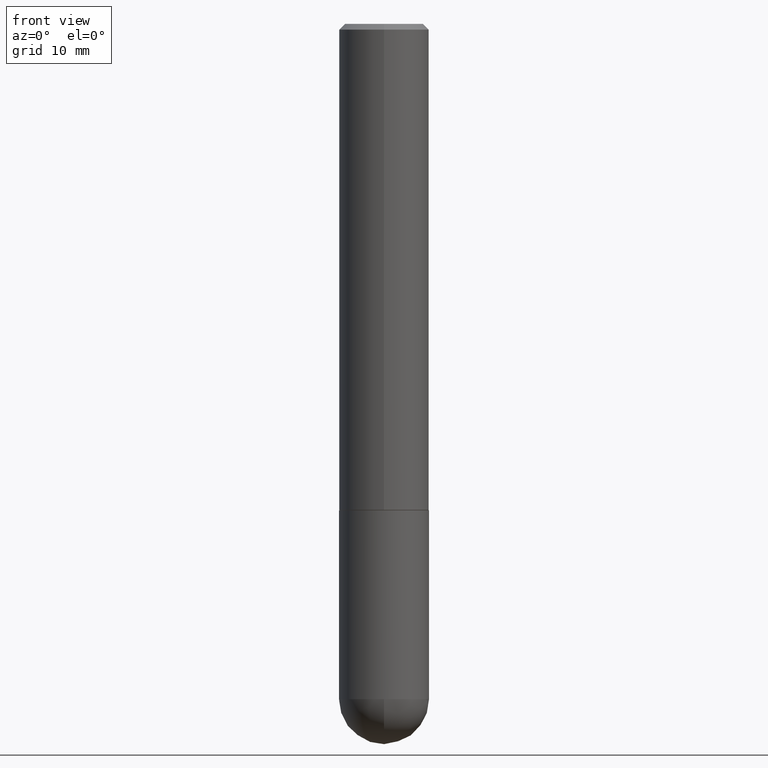
[diagram: clean part render]
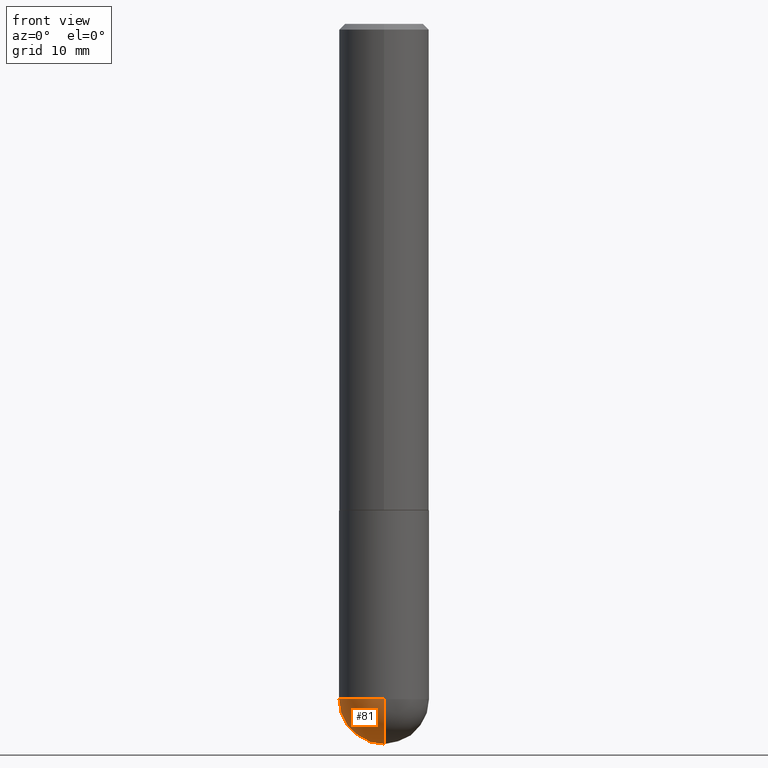
[diagram: same view with one face highlighted and labeled with its STEP entity id]
A machine part, front view. The second image highlights one B-rep face of the part: STEP entity #81.
In plain terms, the highlighted spherical surface has radius 3.9688 mm.
Its self-contained STEP definition (entity closure, byte-faithful):
#1 = DIRECTION ( 'NONE',  ( 1.000000000000000000, -6.982962677686262766E-15, 0.000000000000000000 ) ) ;
#7 = CARTESIAN_POINT ( 'NONE',  ( 5.400447736582527652E-29, -8.657341756053672891E-15, -2.343750000000000000 ) ) ;
#35 = CARTESIAN_POINT ( 'NONE',  ( 5.731567514496413899E-29, -8.183159387913622595E-15, -2.343750000000000000 ) ) ;
#48 = CIRCLE ( 'NONE', #328, 0.1562500000000002498 ) ;
#51 = EDGE_LOOP ( 'NONE', ( #171, #91, #118, #295 ) ) ;
#62 = DIRECTION ( 'NONE',  ( 1.000000000000000000, -6.982962677686262766E-15, 0.000000000000000000 ) ) ;
#81 = ADVANCED_FACE ( 'NONE', ( #142 ), #199, .T. ) ;
#88 = AXIS2_PLACEMENT_3D ( 'NONE', #7, #382, #405 ) ;
#91 = ORIENTED_EDGE ( 'NONE', *, *, #188, .T. ) ;
#94 = CARTESIAN_POINT ( 'NONE',  ( 5.731567514496413899E-29, -8.183159387913622595E-15, -2.343750000000000000 ) ) ;
#107 = VERTEX_POINT ( 'NONE', #243 ) ;
#118 = ORIENTED_EDGE ( 'NONE', *, *, #369, .F. ) ;
#130 = DIRECTION ( 'NONE',  ( 1.000000000000000000, -6.982962677686265922E-15, 4.883557194083112340E-29 ) ) ;
#142 = FACE_OUTER_BOUND ( 'NONE', #51, .T. ) ;
#146 = DIRECTION ( 'NONE',  ( 6.982962677686265922E-15, 1.000000000000000000, -3.496765431890251398E-15 ) ) ;
#147 = AXIS2_PLACEMENT_3D ( 'NONE', #94, #221, #62 ) ;
#156 = DIRECTION ( 'NONE',  ( -2.445468806185136597E-29, 3.491481338843145583E-15, 1.000000000000000000 ) ) ;
#158 = CARTESIAN_POINT ( 'NONE',  ( -1.110223024625101517E-15, -0.1562500000000085487, -2.343749999999999556 ) ) ;
#171 = ORIENTED_EDGE ( 'NONE', *, *, #388, .F. ) ;
#185 = AXIS2_PLACEMENT_3D ( 'NONE', #35, #156, #1 ) ;
#187 = CARTESIAN_POINT ( 'NONE',  ( 5.400447736582527652E-29, -8.657341756053672891E-15, -2.343750000000000000 ) ) ;
#188 = EDGE_CURVE ( 'NONE', #244, #274, #339, .T. ) ;
#199 = SPHERICAL_SURFACE ( 'NONE', #293, 0.1562500000000002498 ) ;
#221 = DIRECTION ( 'NONE',  ( -2.445468806185136597E-29, 3.491481338843145583E-15, 1.000000000000000000 ) ) ;
#224 = DIRECTION ( 'NONE',  ( 6.982962677686265922E-15, 1.000000000000000000, 0.000000000000000000 ) ) ;
#231 = CIRCLE ( 'NONE', #147, 0.1562500000000000000 ) ;
#235 = EDGE_CURVE ( 'NONE', #316, #107, #365, .T. ) ;
#243 = CARTESIAN_POINT ( 'NONE',  ( -0.1562500000000000000, -5.928166919315270321E-15, -2.343750000000000000 ) ) ;
#244 = VERTEX_POINT ( 'NONE', #358 ) ;
#274 = VERTEX_POINT ( 'NONE', #158 ) ;
#287 = CARTESIAN_POINT ( 'NONE',  ( 1.091087918388535577E-15, 0.1562499999999916733, -2.343750000000000444 ) ) ;
#293 = AXIS2_PLACEMENT_3D ( 'NONE', #322, #300, #146 ) ;
#295 = ORIENTED_EDGE ( 'NONE', *, *, #235, .F. ) ;
#300 = DIRECTION ( 'NONE',  ( -1.000000000000000000, 6.982962677686265922E-15, -4.883557194083112340E-29 ) ) ;
#316 = VERTEX_POINT ( 'NONE', #287 ) ;
#322 = CARTESIAN_POINT ( 'NONE',  ( 5.400447736582527652E-29, -8.657341756053672891E-15, -2.343750000000000000 ) ) ;
#328 = AXIS2_PLACEMENT_3D ( 'NONE', #187, #130, #224 ) ;
#339 = CIRCLE ( 'NONE', #88, 0.1562500000000002498 ) ;
#358 = CARTESIAN_POINT ( 'NONE',  ( 5.789233224183170584E-29, -9.193318162129576161E-15, -2.500000000000000000 ) ) ;
#365 = CIRCLE ( 'NONE', #185, 0.1562500000000000000 ) ;
#369 = EDGE_CURVE ( 'NONE', #107, #274, #231, .T. ) ;
#382 = DIRECTION ( 'NONE',  ( -1.000000000000000000, 7.105427357601001070E-15, -4.926315508542082329E-29 ) ) ;
#388 = EDGE_CURVE ( 'NONE', #244, #316, #48, .T. ) ;
#405 = DIRECTION ( 'NONE',  ( -7.105427357601000281E-15, -1.000000000000000000, 0.000000000000000000 ) ) ;